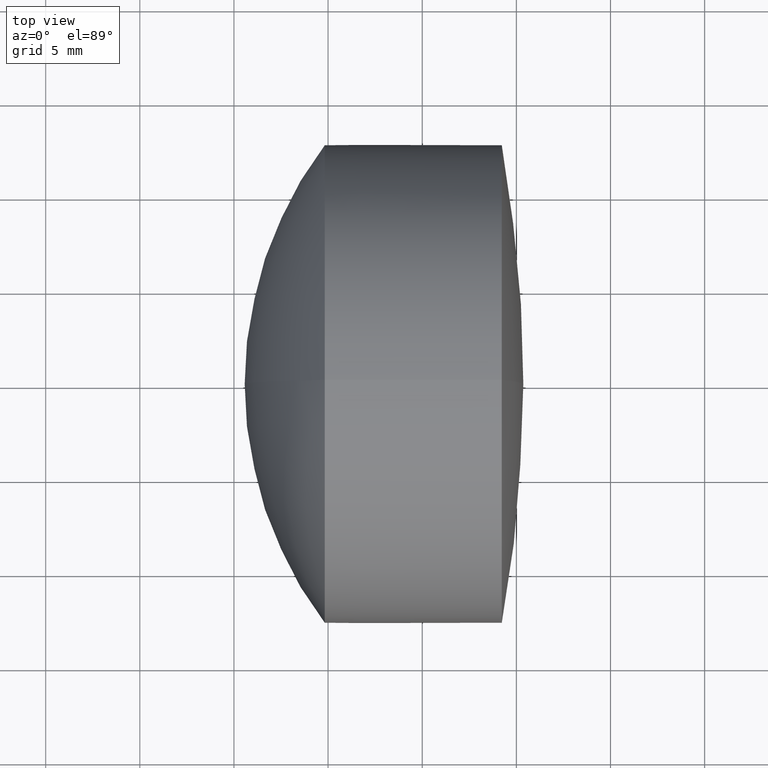
[diagram: clean part render]
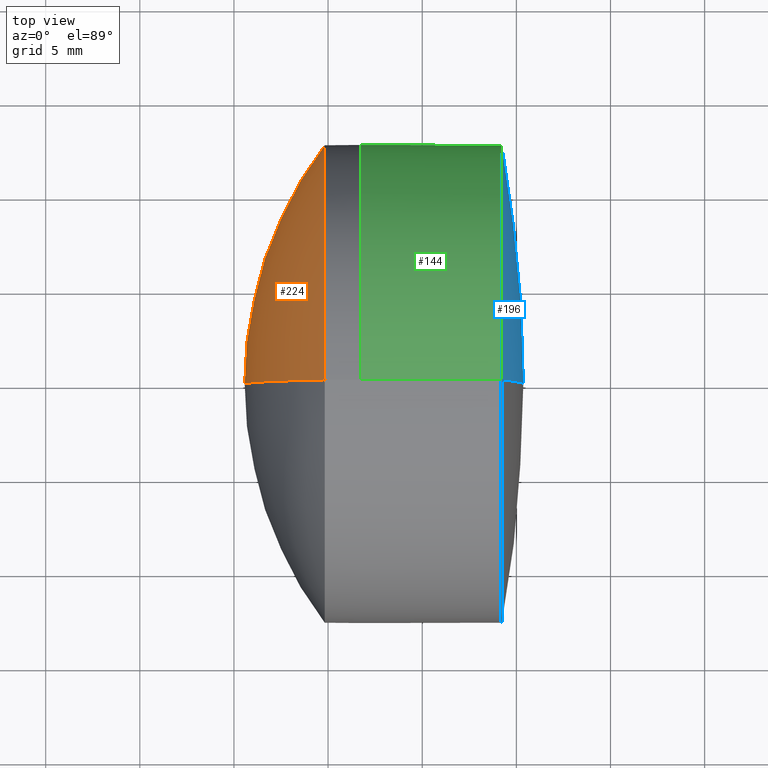
[diagram: same view with three faces highlighted in distinct colors, each labeled with its STEP entity id]
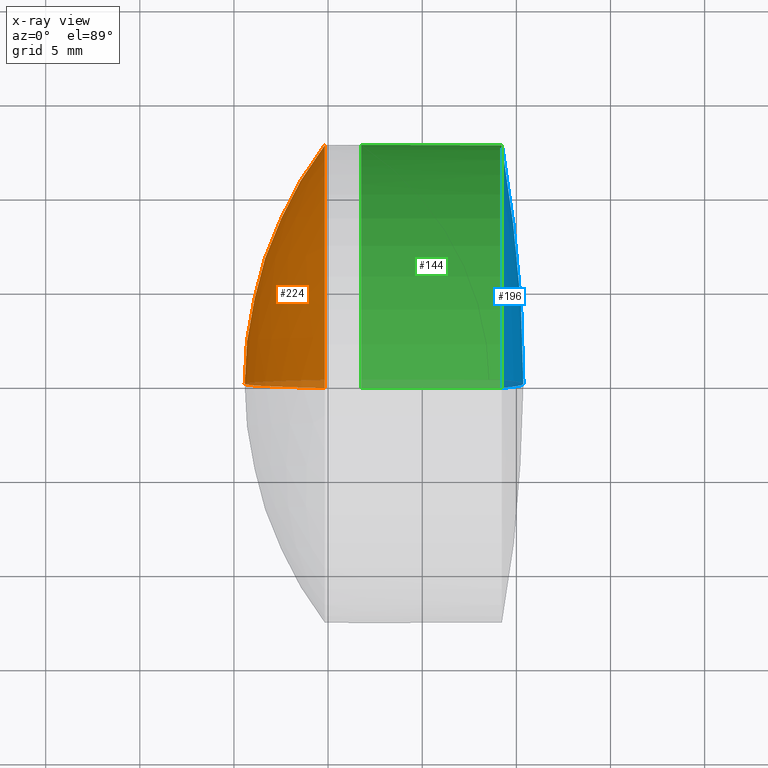
[diagram: x-ray of the same camera — body ghosted, the three highlighted faces saturated]
A machine part, top view with three faces highlighted in distinct colors.
The next image is the same camera in x-ray (body ghosted, the three faces saturated) — at least one of them is partly hidden behind the body in this view.
Their STEP definitions:

[orange] entity #224 — the highlighted spherical surface has radius 21.09 mm.
#29 = EDGE_LOOP ( 'NONE', ( #129, #217, #58 ) ) ;
#35 = DIRECTION ( 'NONE',  ( -1.000000000000000000, -0.0000000000000000000, -0.0000000000000000000 ) ) ;
#40 = CARTESIAN_POINT ( 'NONE',  ( 31.66023858577234100, 0.0000000000000000000, -4.336808766610423000E-016 ) ) ;
#58 = ORIENTED_EDGE ( 'NONE', *, *, #103, .F. ) ;
#59 = SPHERICAL_SURFACE ( 'NONE', #170, 21.09000000000000000 ) ;
#80 = CARTESIAN_POINT ( 'NONE',  ( 14.82283676720187200, 1.555301434917138400E-015, -12.69999999999999900 ) ) ;
#96 = AXIS2_PLACEMENT_3D ( 'NONE', #229, #35, #200 ) ;
#97 = DIRECTION ( 'NONE',  ( 0.0000000000000000000, 0.0000000000000000000, -1.000000000000000000 ) ) ;
#100 = VERTEX_POINT ( 'NONE', #179 ) ;
#102 = CIRCLE ( 'NONE', #96, 12.69999999999999900 ) ;
#103 = EDGE_CURVE ( 'NONE', #100, #280, #266, .T. ) ;
#109 = EDGE_CURVE ( 'NONE', #293, #280, #118, .T. ) ;
#118 = CIRCLE ( 'NONE', #282, 21.09000000000000000 ) ;
#121 = CARTESIAN_POINT ( 'NONE',  ( 31.66023858577234100, 0.0000000000000000000, -4.336808766610423000E-016 ) ) ;
#129 = ORIENTED_EDGE ( 'NONE', *, *, #240, .T. ) ;
#148 = DIRECTION ( 'NONE',  ( 0.0000000000000000000, 0.0000000000000000000, 1.000000000000000000 ) ) ;
#164 = CARTESIAN_POINT ( 'NONE',  ( 10.57023858577233900, 0.0000000000000000000, 8.577091730398417100E-016 ) ) ;
#170 = AXIS2_PLACEMENT_3D ( 'NONE', #121, #341, #148 ) ;
#179 = CARTESIAN_POINT ( 'NONE',  ( 14.82283676720187200, 0.0000000000000000000, 12.69999999999999900 ) ) ;
#200 = DIRECTION ( 'NONE',  ( 0.0000000000000000000, 0.0000000000000000000, 1.000000000000000000 ) ) ;
#206 = DIRECTION ( 'NONE',  ( 0.0000000000000000000, -1.224646799147353200E-016, 1.000000000000000000 ) ) ;
#212 = DIRECTION ( 'NONE',  ( -0.0000000000000000000, 1.000000000000000000, 1.224646799147353200E-016 ) ) ;
#217 = ORIENTED_EDGE ( 'NONE', *, *, #109, .T. ) ;
#224 = ADVANCED_FACE ( 'NONE', ( #278 ), #59, .T. ) ;
#229 = CARTESIAN_POINT ( 'NONE',  ( 14.82283676720187400, 0.0000000000000000000, 0.0000000000000000000 ) ) ;
#240 = EDGE_CURVE ( 'NONE', #100, #293, #102, .T. ) ;
#266 = CIRCLE ( 'NONE', #347, 21.09000000000000000 ) ;
#278 = FACE_OUTER_BOUND ( 'NONE', #29, .T. ) ;
#280 = VERTEX_POINT ( 'NONE', #164 ) ;
#282 = AXIS2_PLACEMENT_3D ( 'NONE', #40, #212, #206 ) ;
#293 = VERTEX_POINT ( 'NONE', #80 ) ;
#295 = DIRECTION ( 'NONE',  ( 0.0000000000000000000, -1.000000000000000000, 0.0000000000000000000 ) ) ;
#320 = CARTESIAN_POINT ( 'NONE',  ( 31.66023858577234100, 0.0000000000000000000, -4.336808766610423000E-016 ) ) ;
#341 = DIRECTION ( 'NONE',  ( 0.0000000000000000000, 1.000000000000000000, 0.0000000000000000000 ) ) ;
#347 = AXIS2_PLACEMENT_3D ( 'NONE', #320, #295, #97 ) ;

[blue] entity #196 — the highlighted spherical surface has radius 71.12 mm.
#3 = CARTESIAN_POINT ( 'NONE',  ( -45.74976141422766300, 0.0000000000000000000, 0.0000000000000000000 ) ) ;
#7 = CIRCLE ( 'NONE', #189, 71.12000000000000500 ) ;
#28 = EDGE_CURVE ( 'NONE', #142, #222, #7, .T. ) ;
#36 = EDGE_CURVE ( 'NONE', #142, #306, #312, .T. ) ;
#37 = CARTESIAN_POINT ( 'NONE',  ( -45.74976141422766300, 0.0000000000000000000, 0.0000000000000000000 ) ) ;
#39 = DIRECTION ( 'NONE',  ( -1.000000000000000000, -0.0000000000000000000, -0.0000000000000000000 ) ) ;
#62 = DIRECTION ( 'NONE',  ( 0.0000000000000000000, -1.000000000000000000, -1.224646799147353200E-016 ) ) ;
#63 = AXIS2_PLACEMENT_3D ( 'NONE', #37, #231, #141 ) ;
#79 = CARTESIAN_POINT ( 'NONE',  ( 25.37023858577233800, 0.0000000000000000000, -4.354844017767987900E-015 ) ) ;
#81 = CARTESIAN_POINT ( 'NONE',  ( 24.22712334066837100, 0.0000000000000000000, -12.69999999999997400 ) ) ;
#91 = FACE_OUTER_BOUND ( 'NONE', #205, .T. ) ;
#141 = DIRECTION ( 'NONE',  ( 0.0000000000000000000, 0.0000000000000000000, -1.000000000000000000 ) ) ;
#142 = VERTEX_POINT ( 'NONE', #79 ) ;
#143 = CIRCLE ( 'NONE', #227, 12.69999999999999800 ) ;
#189 = AXIS2_PLACEMENT_3D ( 'NONE', #3, #62, #297 ) ;
#196 = ADVANCED_FACE ( 'NONE', ( #91 ), #239, .T. ) ;
#205 = EDGE_LOOP ( 'NONE', ( #268, #313, #317 ) ) ;
#222 = VERTEX_POINT ( 'NONE', #258 ) ;
#227 = AXIS2_PLACEMENT_3D ( 'NONE', #291, #39, #327 ) ;
#231 = DIRECTION ( 'NONE',  ( -0.0000000000000000000, -1.000000000000000000, -0.0000000000000000000 ) ) ;
#235 = DIRECTION ( 'NONE',  ( 0.0000000000000000000, 0.0000000000000000000, 1.000000000000000000 ) ) ;
#239 = SPHERICAL_SURFACE ( 'NONE', #63, 71.12000000000000500 ) ;
#241 = AXIS2_PLACEMENT_3D ( 'NONE', #264, #275, #235 ) ;
#258 = CARTESIAN_POINT ( 'NONE',  ( 24.22712334066837100, -1.555301434917135700E-015, 12.69999999999997400 ) ) ;
#264 = CARTESIAN_POINT ( 'NONE',  ( -45.74976141422766300, 0.0000000000000000000, 0.0000000000000000000 ) ) ;
#268 = ORIENTED_EDGE ( 'NONE', *, *, #28, .F. ) ;
#275 = DIRECTION ( 'NONE',  ( 0.0000000000000000000, 1.000000000000000000, -0.0000000000000000000 ) ) ;
#291 = CARTESIAN_POINT ( 'NONE',  ( 24.22712334066836700, 0.0000000000000000000, 0.0000000000000000000 ) ) ;
#297 = DIRECTION ( 'NONE',  ( 0.0000000000000000000, 1.224646799147353200E-016, -1.000000000000000000 ) ) ;
#306 = VERTEX_POINT ( 'NONE', #81 ) ;
#312 = CIRCLE ( 'NONE', #241, 71.12000000000000500 ) ;
#313 = ORIENTED_EDGE ( 'NONE', *, *, #36, .T. ) ;
#317 = ORIENTED_EDGE ( 'NONE', *, *, #331, .F. ) ;
#327 = DIRECTION ( 'NONE',  ( 0.0000000000000000000, 0.0000000000000000000, 1.000000000000000000 ) ) ;
#331 = EDGE_CURVE ( 'NONE', #222, #306, #143, .T. ) ;

[green] entity #144 — the highlighted cylindrical surface (partial cylindrical patch) has radius 12.7 mm, axis along (-1, -0, -0).
#8 = ORIENTED_EDGE ( 'NONE', *, *, #331, .T. ) ;
#25 = CARTESIAN_POINT ( 'NONE',  ( -0.5519199926577972300, 0.0000000000000000000, 0.0000000000000000000 ) ) ;
#39 = DIRECTION ( 'NONE',  ( -1.000000000000000000, -0.0000000000000000000, -0.0000000000000000000 ) ) ;
#45 = CARTESIAN_POINT ( 'NONE',  ( 16.75446555327505400, 0.0000000000000000000, 0.0000000000000000000 ) ) ;
#57 = ORIENTED_EDGE ( 'NONE', *, *, #303, .F. ) ;
#65 = DIRECTION ( 'NONE',  ( -1.000000000000000000, -0.0000000000000000000, -0.0000000000000000000 ) ) ;
#81 = CARTESIAN_POINT ( 'NONE',  ( 24.22712334066837100, 0.0000000000000000000, -12.69999999999997400 ) ) ;
#101 = DIRECTION ( 'NONE',  ( -1.000000000000000000, -0.0000000000000000000, -0.0000000000000000000 ) ) ;
#108 = DIRECTION ( 'NONE',  ( 0.0000000000000000000, 0.0000000000000000000, 1.000000000000000000 ) ) ;
#110 = AXIS2_PLACEMENT_3D ( 'NONE', #25, #274, #218 ) ;
#128 = CIRCLE ( 'NONE', #281, 12.69999999999999900 ) ;
#143 = CIRCLE ( 'NONE', #227, 12.69999999999999800 ) ;
#144 = ADVANCED_FACE ( 'NONE', ( #211 ), #230, .T. ) ;
#173 = EDGE_LOOP ( 'NONE', ( #8, #243, #57, #234 ) ) ;
#176 = VECTOR ( 'NONE', #65, 1000.000000000000000 ) ;
#201 = CARTESIAN_POINT ( 'NONE',  ( 16.75446555327505400, -1.555301434917138400E-015, 12.69999999999999900 ) ) ;
#211 = FACE_OUTER_BOUND ( 'NONE', #173, .T. ) ;
#218 = DIRECTION ( 'NONE',  ( 0.0000000000000000000, 0.0000000000000000000, 1.000000000000000000 ) ) ;
#222 = VERTEX_POINT ( 'NONE', #258 ) ;
#226 = VERTEX_POINT ( 'NONE', #249 ) ;
#227 = AXIS2_PLACEMENT_3D ( 'NONE', #291, #39, #327 ) ;
#230 = CYLINDRICAL_SURFACE ( 'NONE', #110, 12.69999999999999900 ) ;
#234 = ORIENTED_EDGE ( 'NONE', *, *, #259, .F. ) ;
#236 = CARTESIAN_POINT ( 'NONE',  ( -0.5519199926577972300, 1.555301434917138400E-015, -12.69999999999999900 ) ) ;
#237 = DIRECTION ( 'NONE',  ( -1.000000000000000000, -0.0000000000000000000, -0.0000000000000000000 ) ) ;
#243 = ORIENTED_EDGE ( 'NONE', *, *, #277, .T. ) ;
#246 = LINE ( 'NONE', #339, #176 ) ;
#249 = CARTESIAN_POINT ( 'NONE',  ( 16.75446555327505400, 0.0000000000000000000, -12.69999999999999900 ) ) ;
#258 = CARTESIAN_POINT ( 'NONE',  ( 24.22712334066837100, -1.555301434917135700E-015, 12.69999999999997400 ) ) ;
#259 = EDGE_CURVE ( 'NONE', #222, #321, #246, .T. ) ;
#274 = DIRECTION ( 'NONE',  ( -1.000000000000000000, -0.0000000000000000000, -0.0000000000000000000 ) ) ;
#277 = EDGE_CURVE ( 'NONE', #306, #226, #316, .T. ) ;
#281 = AXIS2_PLACEMENT_3D ( 'NONE', #45, #237, #108 ) ;
#291 = CARTESIAN_POINT ( 'NONE',  ( 24.22712334066836700, 0.0000000000000000000, 0.0000000000000000000 ) ) ;
#303 = EDGE_CURVE ( 'NONE', #321, #226, #128, .T. ) ;
#306 = VERTEX_POINT ( 'NONE', #81 ) ;
#316 = LINE ( 'NONE', #236, #326 ) ;
#321 = VERTEX_POINT ( 'NONE', #201 ) ;
#326 = VECTOR ( 'NONE', #101, 1000.000000000000000 ) ;
#327 = DIRECTION ( 'NONE',  ( 0.0000000000000000000, 0.0000000000000000000, 1.000000000000000000 ) ) ;
#331 = EDGE_CURVE ( 'NONE', #222, #306, #143, .T. ) ;
#339 = CARTESIAN_POINT ( 'NONE',  ( -0.5519199926577972300, 0.0000000000000000000, 12.69999999999999900 ) ) ;